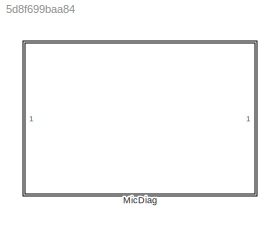
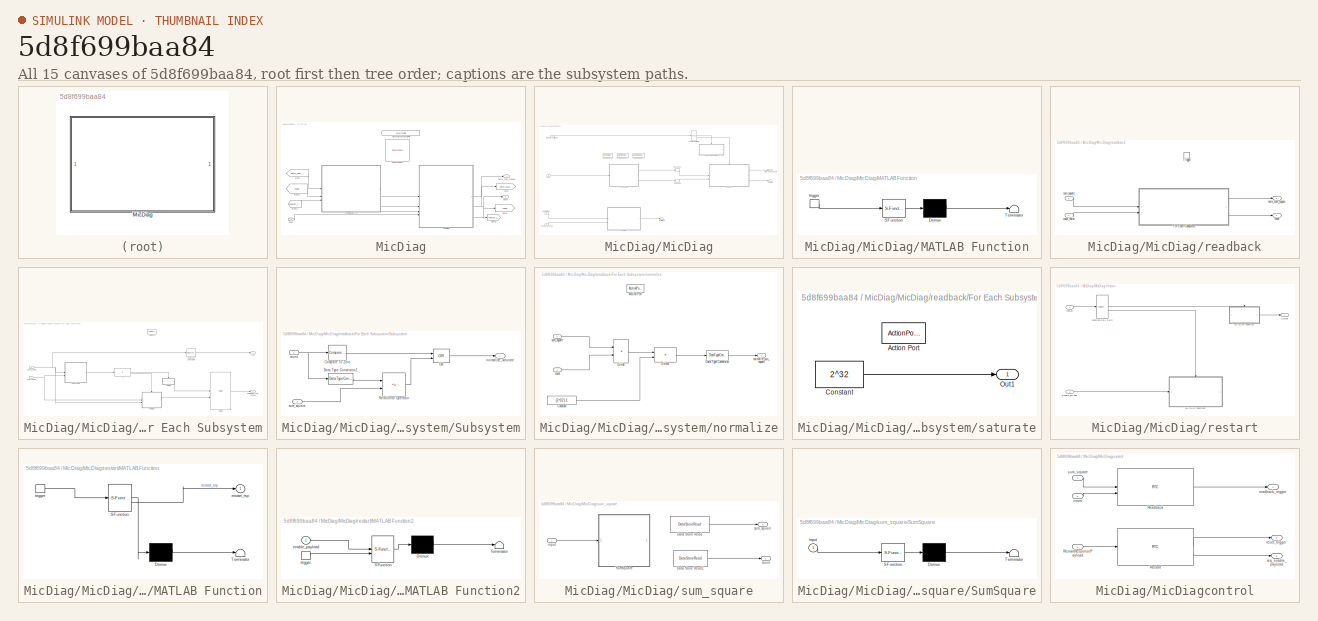
[diagram: thumbnail index - all 15 canvases of the model, root first then tree order]
MODEL slx_5d8f699baa84
KIND library
CONFIG AbsTol = auto
CONFIG EnableMultiTasking = off
CONFIG FixedStep = auto
CONFIG MaxStep = auto
CONFIG MinStep = auto
CONFIG RelTol = 1e-3
CONFIG SampleTimeConstraint = Unconstrained
CONFIG SolverName = VariableStepAuto
CONFIG StartTime = 0.0
CONFIG StopTime = 10.0
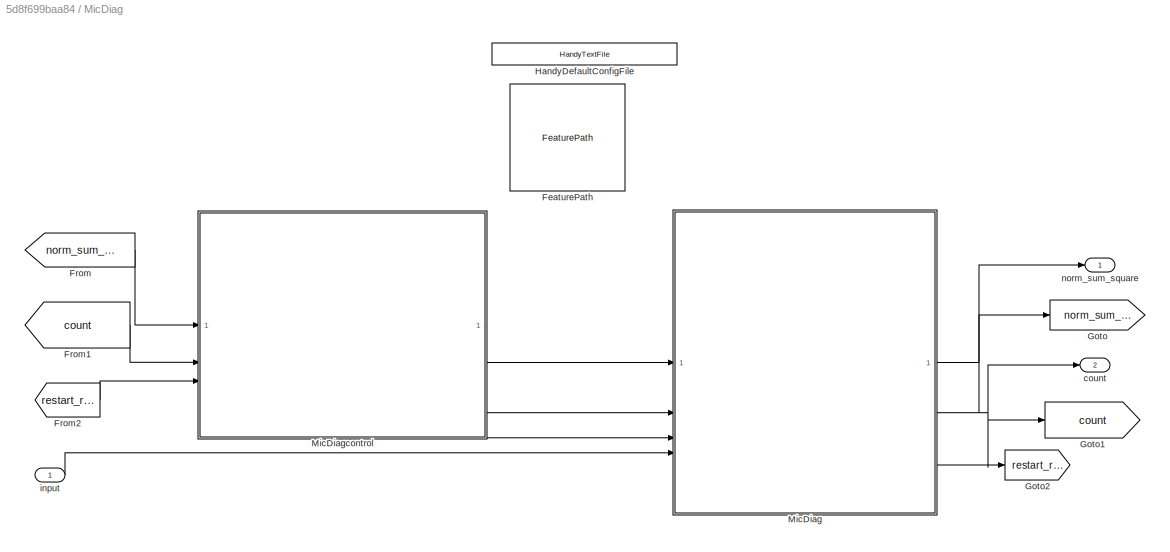
BLOCK [SubSystem] MicDiag
BLOCK [Reference] MicDiag/FeaturePath  REF=FeaturePath/FeaturePath
  SourceBlock = FeaturePath/FeaturePath
  SourceType = Talaria Feature Path
BLOCK [From] MicDiag/From
  GotoTag = norm_sum_square
BLOCK [From] MicDiag/From1
  GotoTag = count
BLOCK [From] MicDiag/From2
  GotoTag = restart_rsp
BLOCK [Goto] MicDiag/Goto
  GotoTag = norm_sum_square
BLOCK [Goto] MicDiag/Goto1
  GotoTag = count
BLOCK [Goto] MicDiag/Goto2
  GotoTag = restart_rsp
BLOCK [Reference] MicDiag/HandyDefaultConfigFile  REF=HandyTextFile/HandyTextFile
  SourceBlock = HandyTextFile/HandyTextFile
  SourceType = Talaria Handy Text File
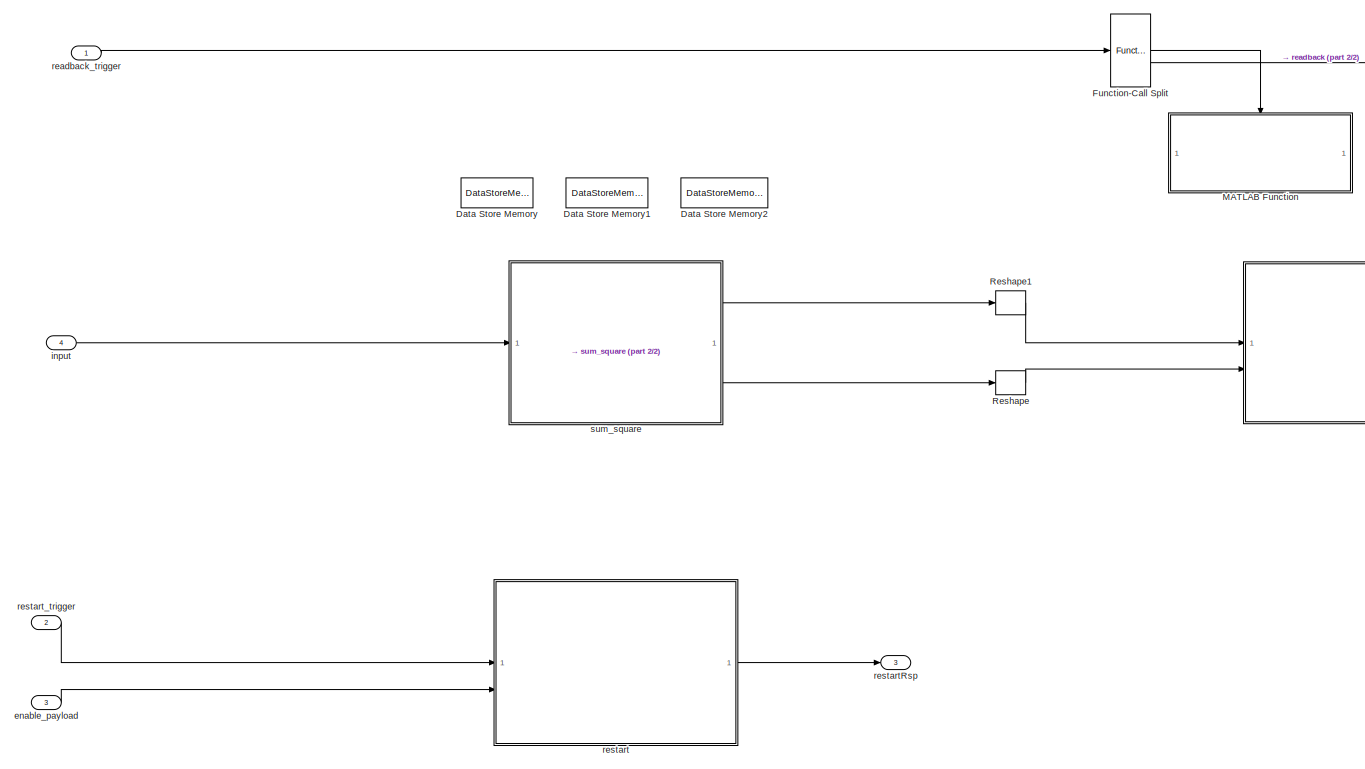
[diagram: MicDiag/MicDiag - part 1/2, most of the canvas]
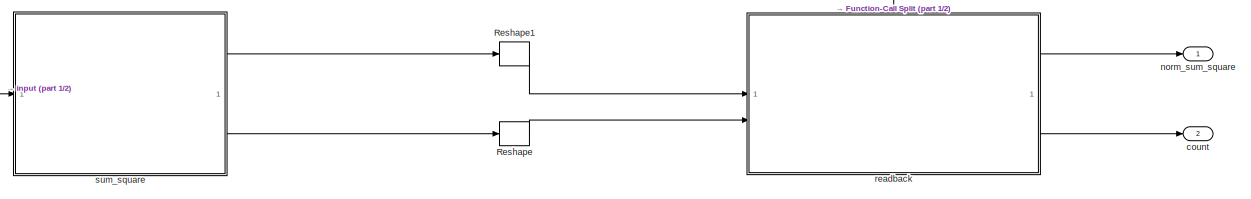
[diagram: MicDiag/MicDiag - part 2/2, central region]
BLOCK [SubSystem] MicDiag/MicDiag
BLOCK [DataStoreMemory] MicDiag/MicDiag/Data Store Memory
  DataStoreName = acc_sum
  InitialValue = zeros(Config.NumMicIn,1)
  OutDataTypeStr = single
  ShowAdditionalParam = off
  SignalType = real
BLOCK [DataStoreMemory] MicDiag/MicDiag/Data Store Memory1
  DataStoreName = count
  InitialValue = zeros(Config.NumMicIn,1)
  OutDataTypeStr = int32
  ShowAdditionalParam = off
  SignalType = real
BLOCK [DataStoreMemory] MicDiag/MicDiag/Data Store Memory2
  DataStoreName = enable
  InitialValue = zeros(Config.NumMicIn,1)
  OutDataTypeStr = int32
  ShowAdditionalParam = off
  SignalType = real
BLOCK [FunctionCallSplit] MicDiag/MicDiag/Function-Call Split
  IconShape = distinctive
  NumOutputPorts = 2
BLOCK [SubSystem] MicDiag/MicDiag/MATLAB Function
  ErrorFcn = Stateflow.Translate.translate
  PermitHierarchicalResolution = ExplicitOnly
  SFBlockType = MATLAB Function
  TreatAsAtomicUnit = on
BLOCK [Demux] MicDiag/MicDiag/MATLAB Function/ Demux 
  Outputs = 1
BLOCK [S-Function] MicDiag/MicDiag/MATLAB Function/ SFunction 
  EnableBusSupport = off
  FunctionName = sf_sfun
  PortCounts = [1 1]
  SFcnIsStateOwnerBlock = off
  SFunctionDeploymentMode = off
  Tag = Stateflow S-Function 1
BLOCK [Terminator] MicDiag/MicDiag/MATLAB Function/ Terminator 
BLOCK [TriggerPort] MicDiag/MicDiag/MATLAB Function/trigger
  ShowOutputPort = on
  StatesWhenEnabling = held
  TriggerType = function-call
  VariantControl = (inherit)
BLOCK [Reshape] MicDiag/MicDiag/Reshape
  OutputDimensionality = Row vector (2-D)
BLOCK [Reshape] MicDiag/MicDiag/Reshape1
  OutputDimensionality = Row vector (2-D)
BLOCK [Outport] MicDiag/MicDiag/count
  Port = 2
BLOCK [Inport] MicDiag/MicDiag/enable_payload
  Port = 3
BLOCK [Inport] MicDiag/MicDiag/input
  Port = 4
BLOCK [Outport] MicDiag/MicDiag/norm_sum_square
BLOCK [SubSystem] MicDiag/MicDiag/readback
  TreatAsAtomicUnit = on
BLOCK [SubSystem] MicDiag/MicDiag/readback/For Each Subsystem
  TreatAsAtomicUnit = on
BLOCK [DataTypeConversion] MicDiag/MicDiag/readback/For Each Subsystem/Data Type Conversion
  OutDataTypeStr = uint32
  RndMeth = Nearest
  SaturateOnIntegerOverflow = off
BLOCK [ForEach] MicDiag/MicDiag/readback/For Each Subsystem/For Each
  DisableCoverage = on
BLOCK [If] MicDiag/MicDiag/readback/For Each Subsystem/If
  IfExpression = u1 ==1
BLOCK [Merge] MicDiag/MicDiag/readback/For Each Subsystem/Merge
BLOCK [SubSystem] MicDiag/MicDiag/readback/For Each Subsystem/Subsystem
BLOCK [Reference] MicDiag/MicDiag/readback/For Each Subsystem/Subsystem/Compare To Zero  REF=simulink/Logic and Bit
Operations/Compare
To Zero
  SourceBlock = simulink/Logic and Bit\nOperations/Compare\nTo Zero
  SourceType = Compare To Zero
BLOCK [DataTypeConversion] MicDiag/MicDiag/readback/For Each Subsystem/Subsystem/Data Type Conversion1
  OutDataTypeStr = single
  RndMeth = Floor
  SaturateOnIntegerOverflow = off
BLOCK [Logic] MicDiag/MicDiag/readback/For Each Subsystem/Subsystem/OR
  AllPortsSameDT = off
  IconShape = distinctive
  Operator = OR
  OutDataTypeStr = boolean
BLOCK [RelationalOperator] MicDiag/MicDiag/readback/For Each Subsystem/Subsystem/Relational Operator
  InputSameDT = off
  Operator = <=
  OutDataTypeStr = boolean
  RndMeth = Simplest
BLOCK [Inport] MicDiag/MicDiag/readback/For Each Subsystem/Subsystem/count
BLOCK [Outport] MicDiag/MicDiag/readback/For Each Subsystem/Subsystem/normalize_saturate
BLOCK [Inport] MicDiag/MicDiag/readback/For Each Subsystem/Subsystem/sum_square
  Port = 2
BLOCK [Outport] MicDiag/MicDiag/readback/For Each Subsystem/count
  ConcatenationDimension = 1
  InitialOutput = [0]
  OutputWhenDisabled = reset
  Port = 2
  VectorParamsAs1DForOutWhenUnconnected = off
BLOCK [Inport] MicDiag/MicDiag/readback/For Each Subsystem/count_value
  Partition = on
  PartitionDimension = 2
  PartitionOffset = 0
  PartitionWidth = 1
  Port = 2
BLOCK [SubSystem] MicDiag/MicDiag/readback/For Each Subsystem/normalize
  TreatAsAtomicUnit = on
BLOCK [ActionPort] MicDiag/MicDiag/readback/For Each Subsystem/normalize/Action Port
BLOCK [Constant] MicDiag/MicDiag/readback/For Each Subsystem/normalize/Constant
  OutDataTypeStr = single
  Value = (2^32)-1
BLOCK [DataTypeConversion] MicDiag/MicDiag/readback/For Each Subsystem/normalize/Data Type Conversion
  OutDataTypeStr = uint32
  RndMeth = Floor
  SaturateOnIntegerOverflow = off
BLOCK [Product] MicDiag/MicDiag/readback/For Each Subsystem/normalize/Divide
  Inputs = */
BLOCK [Product] MicDiag/MicDiag/readback/For Each Subsystem/normalize/Divide1
BLOCK [Inport] MicDiag/MicDiag/readback/For Each Subsystem/normalize/count
  Port = 2
BLOCK [Outport] MicDiag/MicDiag/readback/For Each Subsystem/normalize/normalize_sum_square
BLOCK [Inport] MicDiag/MicDiag/readback/For Each Subsystem/normalize/sum_square
BLOCK [Outport] MicDiag/MicDiag/readback/For Each Subsystem/normalzied_sum_square
  ConcatenationDimension = 1
  InitialOutput = [0]
  OutputWhenDisabled = reset
  VectorParamsAs1DForOutWhenUnconnected = off
BLOCK [SubSystem] MicDiag/MicDiag/readback/For Each Subsystem/saturate
  TreatAsAtomicUnit = on
BLOCK [ActionPort] MicDiag/MicDiag/readback/For Each Subsystem/saturate/Action Port
BLOCK [Constant] MicDiag/MicDiag/readback/For Each Subsystem/saturate/Constant
  OutDataTypeStr = uint32
  Value = 2^32
BLOCK [Outport] MicDiag/MicDiag/readback/For Each Subsystem/saturate/Out1
BLOCK [Inport] MicDiag/MicDiag/readback/For Each Subsystem/sum_square
  Partition = on
  PartitionDimension = 2
  PartitionOffset = 0
  PartitionWidth = 1
BLOCK [TriggerPort] MicDiag/MicDiag/readback/Trigger
  StatesWhenEnabling = held
  TriggerType = function-call
  VariantControl = Variant
BLOCK [Outport] MicDiag/MicDiag/readback/count
  InitialOutput = zeros(Config.NumMicIn,1)
  Port = 2
BLOCK [Inport] MicDiag/MicDiag/readback/count_value
  Port = 2
BLOCK [Outport] MicDiag/MicDiag/readback/norm_sum_square
  InitialOutput = zeros(Config.NumMicIn,1)
BLOCK [Inport] MicDiag/MicDiag/readback/sum_square
BLOCK [Inport] MicDiag/MicDiag/readback_trigger
BLOCK [SubSystem] MicDiag/MicDiag/restart
BLOCK [Inport] MicDiag/MicDiag/restart/Enable_payload
  Port = 2
BLOCK [FunctionCallSplit] MicDiag/MicDiag/restart/Function-Call Split
  IconShape = distinctive
  NumOutputPorts = 2
  OutputPortLayout = default
BLOCK [SubSystem] MicDiag/MicDiag/restart/MATLAB Function
  ErrorFcn = Stateflow.Translate.translate
  PermitHierarchicalResolution = ExplicitOnly
  SFBlockType = MATLAB Function
  TreatAsAtomicUnit = on
BLOCK [Demux] MicDiag/MicDiag/restart/MATLAB Function/ Demux 
  Outputs = 1
BLOCK [S-Function] MicDiag/MicDiag/restart/MATLAB Function/ SFunction 
  EnableBusSupport = off
  FunctionName = sf_sfun
  PortCounts = [1 2]
  SFcnIsStateOwnerBlock = off
  SFunctionDeploymentMode = off
  Tag = Stateflow S-Function 3
BLOCK [Terminator] MicDiag/MicDiag/restart/MATLAB Function/ Terminator 
BLOCK [Outport] MicDiag/MicDiag/restart/MATLAB Function/restart_rsp
BLOCK [TriggerPort] MicDiag/MicDiag/restart/MATLAB Function/trigger
  ShowOutputPort = on
  StatesWhenEnabling = held
  TriggerType = function-call
  VariantControl = (inherit)
BLOCK [SubSystem] MicDiag/MicDiag/restart/MATLAB Function2
  ErrorFcn = Stateflow.Translate.translate
  PermitHierarchicalResolution = ExplicitOnly
  SFBlockType = MATLAB Function
  TreatAsAtomicUnit = on
BLOCK [Demux] MicDiag/MicDiag/restart/MATLAB Function2/ Demux 
  Outputs = 1
BLOCK [S-Function] MicDiag/MicDiag/restart/MATLAB Function2/ SFunction 
  EnableBusSupport = off
  FunctionName = sf_sfun
  PortCounts = [2 1]
  SFcnIsStateOwnerBlock = off
  SFunctionDeploymentMode = off
  Tag = Stateflow S-Function 4
BLOCK [Terminator] MicDiag/MicDiag/restart/MATLAB Function2/ Terminator 
BLOCK [Inport] MicDiag/MicDiag/restart/MATLAB Function2/enable_payload
BLOCK [TriggerPort] MicDiag/MicDiag/restart/MATLAB Function2/trigger
  ShowOutputPort = on
  StatesWhenEnabling = held
  TriggerType = function-call
  VariantControl = (inherit)
BLOCK [Outport] MicDiag/MicDiag/restart/Output
BLOCK [Inport] MicDiag/MicDiag/restart/restart
BLOCK [Outport] MicDiag/MicDiag/restartRsp
  Port = 3
BLOCK [Inport] MicDiag/MicDiag/restart_trigger
  Port = 2
BLOCK [SubSystem] MicDiag/MicDiag/sum_square
BLOCK [DataStoreRead] MicDiag/MicDiag/sum_square/Data Store Read
  DataStoreName = acc_sum
  IndexOptions = Index vector (dialog)
  Indices = 1
  OutputSizes = 1
BLOCK [DataStoreRead] MicDiag/MicDiag/sum_square/Data Store Read1
  DataStoreName = count
  IndexOptions = Index vector (dialog)
  Indices = 1
  OutputSizes = 1
BLOCK [SubSystem] MicDiag/MicDiag/sum_square/SumSquare
  ErrorFcn = Stateflow.Translate.translate
  PermitHierarchicalResolution = ExplicitOnly
  SFBlockType = MATLAB Function
  TreatAsAtomicUnit = on
BLOCK [Demux] MicDiag/MicDiag/sum_square/SumSquare/ Demux 
  Outputs = 1
BLOCK [S-Function] MicDiag/MicDiag/sum_square/SumSquare/ SFunction 
  EnableBusSupport = off
  FunctionName = sf_sfun
  PortCounts = [1 1]
  SFcnIsStateOwnerBlock = off
  SFunctionDeploymentMode = off
  Tag = Stateflow S-Function 2
BLOCK [Terminator] MicDiag/MicDiag/sum_square/SumSquare/ Terminator 
BLOCK [Inport] MicDiag/MicDiag/sum_square/SumSquare/input
BLOCK [Outport] MicDiag/MicDiag/sum_square/count
  Port = 2
BLOCK [Inport] MicDiag/MicDiag/sum_square/input
BLOCK [Outport] MicDiag/MicDiag/sum_square/sum_square
BLOCK [SubSystem] MicDiag/MicDiagcontrol
BLOCK [Reference] MicDiag/MicDiagcontrol/Readback  REF=RTC/RTC
  SourceBlock = RTC/RTC
  SourceType = Talaria RTC Receive
BLOCK [Reference] MicDiag/MicDiagcontrol/Restart  REF=RTC/RTC
  SourceBlock = RTC/RTC
  SourceType = Talaria RTC Receive
BLOCK [Inport] MicDiag/MicDiagcontrol/RestartResponsePayload
  Port = 3
BLOCK [Inport] MicDiag/MicDiagcontrol/count
  Port = 2
BLOCK [Outport] MicDiag/MicDiagcontrol/readback_trigger
BLOCK [Outport] MicDiag/MicDiagcontrol/req_enable_payload
  Port = 3
BLOCK [Outport] MicDiag/MicDiagcontrol/reset_trigger
  Port = 2
BLOCK [Inport] MicDiag/MicDiagcontrol/sum_square
BLOCK [Outport] MicDiag/count
  Port = 2
BLOCK [Inport] MicDiag/input
BLOCK [Outport] MicDiag/norm_sum_square
LINE MicDiag/From1:1 -> MicDiag/MicDiagcontrol:2
LINE MicDiag/From2:1 -> MicDiag/MicDiagcontrol:3
LINE MicDiag/From:1 -> MicDiag/MicDiagcontrol:1
LINE MicDiag/MicDiag/Function-Call Split:1 -> MicDiag/MicDiag/MATLAB Function:trigger
LINE MicDiag/MicDiag/Function-Call Split:2 -> MicDiag/MicDiag/readback:trigger
LINE MicDiag/MicDiag/Reshape1:1 -> MicDiag/MicDiag/readback:1
LINE MicDiag/MicDiag/Reshape:1 -> MicDiag/MicDiag/readback:2
LINE MicDiag/MicDiag/enable_payload:1 -> MicDiag/MicDiag/restart:2
LINE MicDiag/MicDiag/input:1 -> MicDiag/MicDiag/sum_square:1
LINE MicDiag/MicDiag/readback/For Each Subsystem/Data Type Conversion:1 -> MicDiag/MicDiag/readback/For Each Subsystem/count:1
LINE MicDiag/MicDiag/readback/For Each Subsystem/If:1 -> MicDiag/MicDiag/readback/For Each Subsystem/saturate:ifaction
LINE MicDiag/MicDiag/readback/For Each Subsystem/If:2 -> MicDiag/MicDiag/readback/For Each Subsystem/normalize:ifaction
LINE MicDiag/MicDiag/readback/For Each Subsystem/Merge:1 -> MicDiag/MicDiag/readback/For Each Subsystem/normalzied_sum_square:1
LINE MicDiag/MicDiag/readback/For Each Subsystem/Subsystem/Compare To Zero:1 -> MicDiag/MicDiag/readback/For Each Subsystem/Subsystem/OR:1
LINE MicDiag/MicDiag/readback/For Each Subsystem/Subsystem/Data Type Conversion1:1 -> MicDiag/MicDiag/readback/For Each Subsystem/Subsystem/Relational Operator:1
LINE MicDiag/MicDiag/readback/For Each Subsystem/Subsystem/OR:1 -> MicDiag/MicDiag/readback/For Each Subsystem/Subsystem/normalize_saturate:1
LINE MicDiag/MicDiag/readback/For Each Subsystem/Subsystem/Relational Operator:1 -> MicDiag/MicDiag/readback/For Each Subsystem/Subsystem/OR:2
NET MicDiag/MicDiag/readback/For Each Subsystem/Subsystem/count:1 -> MicDiag/MicDiag/readback/For Each Subsystem/Subsystem/Compare To Zero:1, MicDiag/MicDiag/readback/For Each Subsystem/Subsystem/Data Type Conversion1:1
LINE MicDiag/MicDiag/readback/For Each Subsystem/Subsystem/sum_square:1 -> MicDiag/MicDiag/readback/For Each Subsystem/Subsystem/Relational Operator:2
LINE MicDiag/MicDiag/readback/For Each Subsystem/Subsystem:1 -> MicDiag/MicDiag/readback/For Each Subsystem/If:1
NET MicDiag/MicDiag/readback/For Each Subsystem/count_value:1 -> MicDiag/MicDiag/readback/For Each Subsystem/Data Type Conversion:1, MicDiag/MicDiag/readback/For Each Subsystem/Subsystem:1, MicDiag/MicDiag/readback/For Each Subsystem/normalize:2
LINE MicDiag/MicDiag/readback/For Each Subsystem/normalize/Constant:1 -> MicDiag/MicDiag/readback/For Each Subsystem/normalize/Divide1:2
LINE MicDiag/MicDiag/readback/For Each Subsystem/normalize/Data Type Conversion:1 -> MicDiag/MicDiag/readback/For Each Subsystem/normalize/normalize_sum_square:1
LINE MicDiag/MicDiag/readback/For Each Subsystem/normalize/Divide1:1 -> MicDiag/MicDiag/readback/For Each Subsystem/normalize/Data Type Conversion:1
LINE MicDiag/MicDiag/readback/For Each Subsystem/normalize/Divide:1 -> MicDiag/MicDiag/readback/For Each Subsystem/normalize/Divide1:1
LINE MicDiag/MicDiag/readback/For Each Subsystem/normalize/count:1 -> MicDiag/MicDiag/readback/For Each Subsystem/normalize/Divide:2
LINE MicDiag/MicDiag/readback/For Each Subsystem/normalize/sum_square:1 -> MicDiag/MicDiag/readback/For Each Subsystem/normalize/Divide:1
LINE MicDiag/MicDiag/readback/For Each Subsystem/normalize:1 -> MicDiag/MicDiag/readback/For Each Subsystem/Merge:2
LINE MicDiag/MicDiag/readback/For Each Subsystem/saturate/Constant:1 -> MicDiag/MicDiag/readback/For Each Subsystem/saturate/Out1:1
LINE MicDiag/MicDiag/readback/For Each Subsystem/saturate:1 -> MicDiag/MicDiag/readback/For Each Subsystem/Merge:1
NET MicDiag/MicDiag/readback/For Each Subsystem/sum_square:1 -> MicDiag/MicDiag/readback/For Each Subsystem/Subsystem:2, MicDiag/MicDiag/readback/For Each Subsystem/normalize:1
LINE MicDiag/MicDiag/readback/For Each Subsystem:1 -> MicDiag/MicDiag/readback/norm_sum_square:1
LINE MicDiag/MicDiag/readback/For Each Subsystem:2 -> MicDiag/MicDiag/readback/count:1
LINE MicDiag/MicDiag/readback/count_value:1 -> MicDiag/MicDiag/readback/For Each Subsystem:2
LINE MicDiag/MicDiag/readback/sum_square:1 -> MicDiag/MicDiag/readback/For Each Subsystem:1
LINE MicDiag/MicDiag/readback:1 -> MicDiag/MicDiag/norm_sum_square:1
LINE MicDiag/MicDiag/readback:2 -> MicDiag/MicDiag/count:1
LINE MicDiag/MicDiag/readback_trigger:1 -> MicDiag/MicDiag/Function-Call Split:1
LINE MicDiag/MicDiag/restart/Enable_payload:1 -> MicDiag/MicDiag/restart/MATLAB Function2:1
LINE MicDiag/MicDiag/restart/Function-Call Split:1 -> MicDiag/MicDiag/restart/MATLAB Function:trigger
LINE MicDiag/MicDiag/restart/Function-Call Split:2 -> MicDiag/MicDiag/restart/MATLAB Function2:trigger
LINE MicDiag/MicDiag/restart/MATLAB Function:1 -> MicDiag/MicDiag/restart/Output:1
LINE MicDiag/MicDiag/restart/restart:1 -> MicDiag/MicDiag/restart/Function-Call Split:1
LINE MicDiag/MicDiag/restart:1 -> MicDiag/MicDiag/restartRsp:1
LINE MicDiag/MicDiag/restart_trigger:1 -> MicDiag/MicDiag/restart:1
LINE MicDiag/MicDiag/sum_square/Data Store Read1:1 -> MicDiag/MicDiag/sum_square/count:1
LINE MicDiag/MicDiag/sum_square/Data Store Read:1 -> MicDiag/MicDiag/sum_square/sum_square:1
LINE MicDiag/MicDiag/sum_square/input:1 -> MicDiag/MicDiag/sum_square/SumSquare:1
LINE MicDiag/MicDiag/sum_square:1 -> MicDiag/MicDiag/Reshape1:1
LINE MicDiag/MicDiag/sum_square:2 -> MicDiag/MicDiag/Reshape:1
NET MicDiag/MicDiag:1 -> MicDiag/Goto:1, MicDiag/norm_sum_square:1
NET MicDiag/MicDiag:2 -> MicDiag/Goto1:1, MicDiag/count:1
LINE MicDiag/MicDiag:3 -> MicDiag/Goto2:1
LINE MicDiag/MicDiagcontrol/Readback:1 -> MicDiag/MicDiagcontrol/readback_trigger:1
LINE MicDiag/MicDiagcontrol/Restart:1 -> MicDiag/MicDiagcontrol/reset_trigger:1
LINE MicDiag/MicDiagcontrol/Restart:2 -> MicDiag/MicDiagcontrol/req_enable_payload:1
LINE MicDiag/MicDiagcontrol/RestartResponsePayload:1 -> MicDiag/MicDiagcontrol/Restart:1
LINE MicDiag/MicDiagcontrol/count:1 -> MicDiag/MicDiagcontrol/Readback:2
LINE MicDiag/MicDiagcontrol/sum_square:1 -> MicDiag/MicDiagcontrol/Readback:1
LINE MicDiag/MicDiagcontrol:1 -> MicDiag/MicDiag:1
LINE MicDiag/MicDiagcontrol:2 -> MicDiag/MicDiag:2
LINE MicDiag/MicDiagcontrol:3 -> MicDiag/MicDiag:3
LINE MicDiag/input:1 -> MicDiag/MicDiag:4
note: NET lines group one-source signal fan-out (src -> all destinations, sorted); 1:1 wires keep LINE
CHART MicDiag/MicDiag/MATLAB Function states=1 transitions=1
  STATE_LABEL 'eML_blk_kernel()'
  STATE_LABEL 'SCRIPT:\nfunction ReadbackDisableAccumulation\n    %#codegen\n    % datastore memory to control the audio processing logic:\n    global enable;\n    % find the size of the enable \n    numIn = length(enable);\n    % When Readback is requested,accumulation of sum of sqaure shall freeze\n    enable = int32(zeros(numIn,1));\nend   \n'
CHART MicDiag/MicDiag/sum_square/SumSquare states=1 transitions=1
  STATE_LABEL 'eML_blk_kernel()'
  STATE_LABEL 'SCRIPT:\nfunction sumsquare(input)\n    %#codegen\n    % datastore memory to control the audio processing logic:\n    global acc_sum;\n    global count;\n    global enable;\n    % number of mic\n    numMicIn = size(input,2);\n    % frame size\n    framesize = size(input,1);\n    % Compute sum_of_squares and count\n    % if corresponding mic is enabled(which is a RTC message) \n    for MicIn = 1:numMicIn\n      ...<+186ch>'
CHART MicDiag/MicDiag/restart/MATLAB Function states=1 transitions=1
  STATE_LABEL 'eML_blk_kernel()'
  STATE_LABEL 'SCRIPT:\nfunction restart_rsp = GenRestartRsp \n% Return the restart reponse as 1\n   restart_rsp = int32(1);'
CHART MicDiag/MicDiag/restart/MATLAB Function2 states=1 transitions=1
  STATE_LABEL 'eML_blk_kernel()'
  STATE_LABEL 'SCRIPT:\nfunction restart(enable_payload)\n    %#codegen\n    % datastore memory to control the audio processing logic:\n    global acc_sum;\n    global count;\n    global enable;\n    \n    %Fetch the num of the microphone \n    numMicIn  = length(acc_sum);\n    \n    % freeze the accumulation by clearing enable\n    enable = int32(zeros(numMicIn,1));\n    % clear accumulator\n    acc_sum(1:numMicIn)= single(z...<+299ch>'
CHART  states=0 transitions=0
CHART  states=0 transitions=0
CHART  states=0 transitions=0
CHART  states=0 transitions=0
